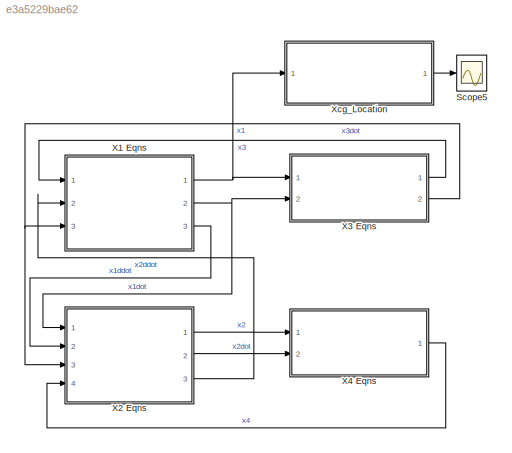
MODEL slx_e3a5229bae62
KIND model
CONFIG AbsTol = auto
CONFIG EnableMultiTasking = off
CONFIG FixedStep = 0.01
CONFIG InitFcn = M=900;\nm=40;\nI=1506.645875;\nk1=14.64*3500;\nk2=14.64*3500;\nk3=91.5*3000;\nk4=91.5*3000;\nc1=64.05*40;\nc2=64.05*40;\nc3=2748.66*3;\nc4=2748.66*3;\na=2.635;\nb=1.3;
CONFIG MaxStep = auto
CONFIG MinStep = auto
CONFIG RelTol = 1e-3
CONFIG SampleTimeConstraint = Unconstrained
CONFIG SolverName = ode4
CONFIG StartTime = 0.0
CONFIG StopTime = 10.0
BLOCK [Scope] Scope5
  Floating = off
  NumInputPorts = 1
  Ports = [1]
  ScopeSpecificationString = Simulink.scopes.TimeScopeBlockCfg('CurrentConfiguration', extmgr.ConfigurationSet(extmgr.Configuration('Core','General UI',true),extmgr.Configuration('Core','Source UI',true),extmgr.Configuration('Sources','WiredSimulink',true,'DataLoggingVariableName','ScopeData1'),extmgr.Configuration('Visuals','Time Domain',true,'SerializedDisplays',{struct('MinYLimReal','-0.32965','MaxYLimReal','0.38647','YLab...<+1439ch>
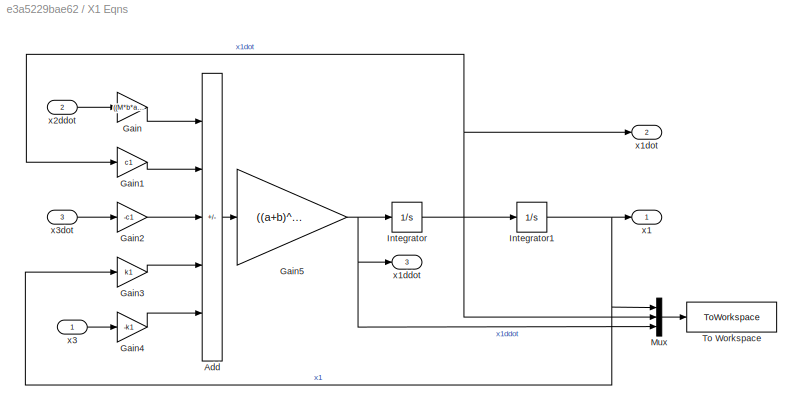
BLOCK [SubSystem] X1 Eqns
  Ports = [3, 3]
  RequestExecContextInheritance = off
BLOCK [Sum] X1 Eqns/Add
  IconShape = rectangular
  Inputs = -----
  Ports = [5, 1]
BLOCK [Gain] X1 Eqns/Gain
  Gain = ((M*b*a)-I)/((a+b)^2)
BLOCK [Gain] X1 Eqns/Gain1
  Gain = c1
BLOCK [Gain] X1 Eqns/Gain2
  Gain = -c1
BLOCK [Gain] X1 Eqns/Gain3
  Gain = k1
BLOCK [Gain] X1 Eqns/Gain4
  Gain = -k1
BLOCK [Gain] X1 Eqns/Gain5
  Gain = ((a+b)^2)/((M*b^2)+I)
BLOCK [Integrator] X1 Eqns/Integrator
  Ports = [1, 1]
BLOCK [Integrator] X1 Eqns/Integrator1
  InitialCondition = 0.2
  Ports = [1, 1]
BLOCK [Mux] X1 Eqns/Mux
  DisplayOption = bar
  Inputs = 3
  Ports = [3, 1]
BLOCK [ToWorkspace] X1 Eqns/To Workspace
  FixptAsFi = on
  MaxDataPoints = inf
  Ports = [1]
  SampleTime = -1
  SaveFormat = Timeseries
  VariableName = X1
BLOCK [Outport] X1 Eqns/x1
BLOCK [Outport] X1 Eqns/x1ddot
  Port = 3
BLOCK [Outport] X1 Eqns/x1dot
  Port = 2
BLOCK [Inport] X1 Eqns/x2ddot
  Port = 2
BLOCK [Inport] X1 Eqns/x3
BLOCK [Inport] X1 Eqns/x3dot
  Port = 3
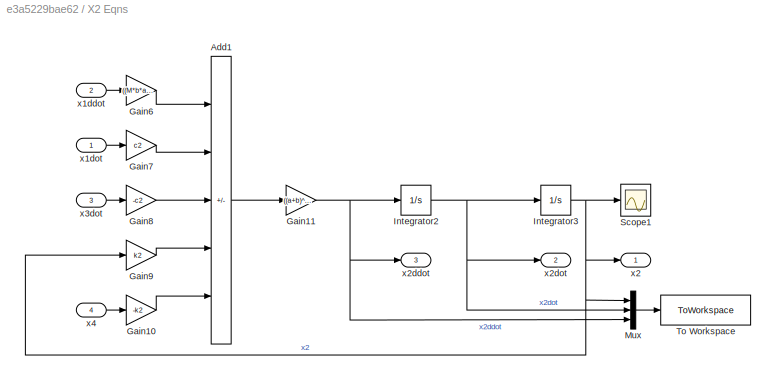
BLOCK [SubSystem] X2 Eqns
  Ports = [4, 3]
  RequestExecContextInheritance = off
BLOCK [Sum] X2 Eqns/Add1
  IconShape = rectangular
  Inputs = -----
  Ports = [5, 1]
BLOCK [Gain] X2 Eqns/Gain10
  Gain = -k2
BLOCK [Gain] X2 Eqns/Gain11
  Gain = ((a+b)^2)/((M*a^2)+I)
BLOCK [Gain] X2 Eqns/Gain6
  Gain = ((M*b*a)-I)/((a+b)^2)
BLOCK [Gain] X2 Eqns/Gain7
  Gain = c2
BLOCK [Gain] X2 Eqns/Gain8
  Gain = -c2
BLOCK [Gain] X2 Eqns/Gain9
  Gain = k2
BLOCK [Integrator] X2 Eqns/Integrator2
  Ports = [1, 1]
BLOCK [Integrator] X2 Eqns/Integrator3
  InitialCondition = -0.15
  Ports = [1, 1]
BLOCK [Mux] X2 Eqns/Mux
  DisplayOption = bar
  Inputs = 3
  Ports = [3, 1]
BLOCK [Scope] X2 Eqns/Scope1
  Floating = off
  NumInputPorts = 1
  Ports = [1]
  ScopeSpecificationString = Simulink.scopes.TimeScopeBlockCfg('CurrentConfiguration', extmgr.ConfigurationSet(extmgr.Configuration('Core','General UI',true),extmgr.Configuration('Core','Source UI',true),extmgr.Configuration('Sources','WiredSimulink',true,'DataLoggingVariableName','ScopeData1'),extmgr.Configuration('Visuals','Time Domain',true,'SerializedDisplays',{struct('MinYLimReal','-0.24411','MaxYLimReal','0.29508','YLab...<+1395ch>
BLOCK [ToWorkspace] X2 Eqns/To Workspace
  FixptAsFi = on
  MaxDataPoints = inf
  Ports = [1]
  SampleTime = -1
  SaveFormat = Timeseries
  VariableName = X2
BLOCK [Inport] X2 Eqns/x1ddot
  Port = 2
BLOCK [Inport] X2 Eqns/x1dot
BLOCK [Outport] X2 Eqns/x2
BLOCK [Outport] X2 Eqns/x2ddot
  Port = 3
BLOCK [Outport] X2 Eqns/x2dot
  Port = 2
BLOCK [Inport] X2 Eqns/x3dot
  Port = 3
BLOCK [Inport] X2 Eqns/x4
  Port = 4
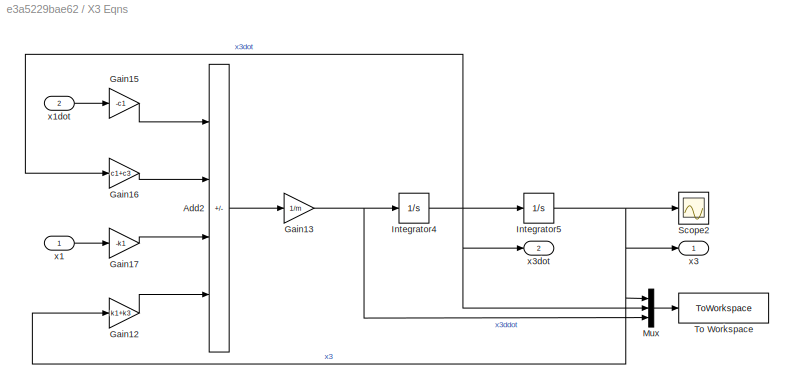
BLOCK [SubSystem] X3 Eqns
  Ports = [2, 2]
  RequestExecContextInheritance = off
BLOCK [Sum] X3 Eqns/Add2
  IconShape = rectangular
  Inputs = ----
  Ports = [4, 1]
BLOCK [Gain] X3 Eqns/Gain12
  Gain = k1+k3
BLOCK [Gain] X3 Eqns/Gain13
  Gain = 1/m
BLOCK [Gain] X3 Eqns/Gain15
  Gain = -c1
BLOCK [Gain] X3 Eqns/Gain16
  Gain = c1+c3
BLOCK [Gain] X3 Eqns/Gain17
  Gain = -k1
BLOCK [Integrator] X3 Eqns/Integrator4
  Ports = [1, 1]
BLOCK [Integrator] X3 Eqns/Integrator5
  Ports = [1, 1]
BLOCK [Mux] X3 Eqns/Mux
  DisplayOption = bar
  Inputs = 3
  Ports = [3, 1]
BLOCK [Scope] X3 Eqns/Scope2
  Floating = off
  NumInputPorts = 1
  Ports = [1]
  ScopeSpecificationString = Simulink.scopes.TimeScopeBlockCfg('CurrentConfiguration', extmgr.ConfigurationSet(extmgr.Configuration('Core','General UI',true),extmgr.Configuration('Core','Source UI',true),extmgr.Configuration('Sources','WiredSimulink',true,'DataLoggingVariableName','ScopeData2'),extmgr.Configuration('Visuals','Time Domain',true,'SerializedDisplays',{struct('MinYLimReal','-0.01977','MaxYLimReal','0.01967','YLab...<+1370ch>
BLOCK [ToWorkspace] X3 Eqns/To Workspace
  FixptAsFi = on
  MaxDataPoints = inf
  Ports = [1]
  SampleTime = -1
  SaveFormat = Timeseries
  VariableName = X3
BLOCK [Inport] X3 Eqns/x1
BLOCK [Inport] X3 Eqns/x1dot
  Port = 2
BLOCK [Outport] X3 Eqns/x3
BLOCK [Outport] X3 Eqns/x3dot
  Port = 2
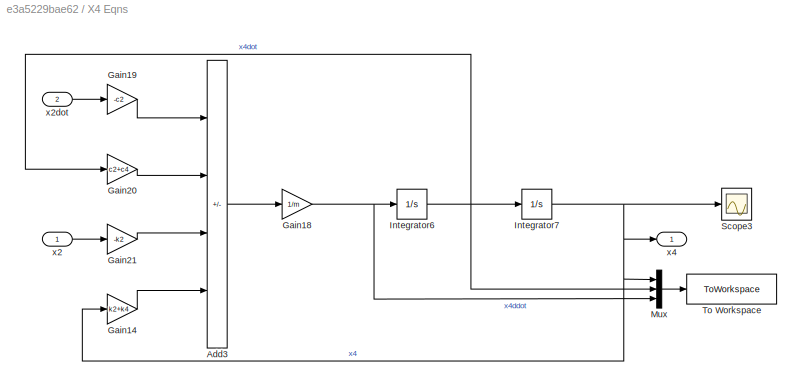
BLOCK [SubSystem] X4 Eqns
  Ports = [2, 1]
  RequestExecContextInheritance = off
BLOCK [Sum] X4 Eqns/Add3
  IconShape = rectangular
  Inputs = ----
  Ports = [4, 1]
BLOCK [Gain] X4 Eqns/Gain14
  Gain = k2+k4
BLOCK [Gain] X4 Eqns/Gain18
  Gain = 1/m
BLOCK [Gain] X4 Eqns/Gain19
  Gain = -c2
BLOCK [Gain] X4 Eqns/Gain20
  Gain = c2+c4
BLOCK [Gain] X4 Eqns/Gain21
  Gain = -k2
BLOCK [Integrator] X4 Eqns/Integrator6
  Ports = [1, 1]
BLOCK [Integrator] X4 Eqns/Integrator7
  Ports = [1, 1]
BLOCK [Mux] X4 Eqns/Mux
  DisplayOption = bar
  Inputs = 3
  Ports = [3, 1]
BLOCK [Scope] X4 Eqns/Scope3
  Floating = off
  NumInputPorts = 1
  Ports = [1]
  ScopeSpecificationString = Simulink.scopes.TimeScopeBlockCfg('CurrentConfiguration', extmgr.ConfigurationSet(extmgr.Configuration('Core','General UI',true),extmgr.Configuration('Core','Source UI',true),extmgr.Configuration('Sources','WiredSimulink',true,'DataLoggingVariableName','ScopeData3'),extmgr.Configuration('Visuals','Time Domain',true,'SerializedDisplays',{struct('MinYLimReal','-0.04723','MaxYLimReal','0.05664','YLab...<+1370ch>
BLOCK [ToWorkspace] X4 Eqns/To Workspace
  FixptAsFi = on
  MaxDataPoints = inf
  Ports = [1]
  SampleTime = -1
  SaveFormat = Timeseries
  VariableName = X4
BLOCK [Inport] X4 Eqns/x2
BLOCK [Inport] X4 Eqns/x2dot
  Port = 2
BLOCK [Outport] X4 Eqns/x4
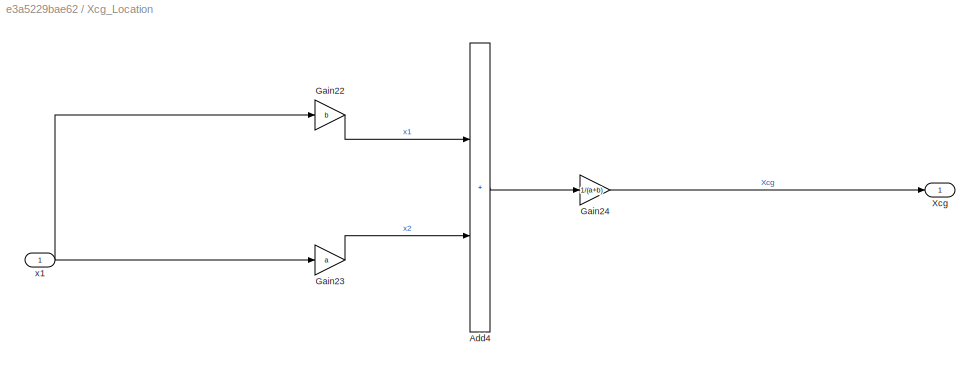
BLOCK [SubSystem] Xcg_Location
  Ports = [1, 1]
  RequestExecContextInheritance = off
BLOCK [Sum] Xcg_Location/Add4
  IconShape = rectangular
  Ports = [2, 1]
BLOCK [Gain] Xcg_Location/Gain22
  Gain = b
BLOCK [Gain] Xcg_Location/Gain23
  Gain = a
BLOCK [Gain] Xcg_Location/Gain24
  Gain = 1/(a+b)
BLOCK [Outport] Xcg_Location/Xcg
BLOCK [Inport] Xcg_Location/x1
LINE X1 Eqns/Add:1 -> X1 Eqns/Gain5:1
LINE X1 Eqns/Gain1:1 -> X1 Eqns/Add:2
LINE X1 Eqns/Gain2:1 -> X1 Eqns/Add:3
LINE X1 Eqns/Gain3:1 -> X1 Eqns/Add:4
LINE X1 Eqns/Gain4:1 -> X1 Eqns/Add:5
NET X1 Eqns/Gain5:1 -> X1 Eqns/Integrator:1, X1 Eqns/Mux:3, X1 Eqns/x1ddot:1
LINE X1 Eqns/Gain:1 -> X1 Eqns/Add:1
NET X1 Eqns/Integrator1:1 -> X1 Eqns/Gain3:1, X1 Eqns/Mux:1, X1 Eqns/x1:1
NET X1 Eqns/Integrator:1 -> X1 Eqns/Gain1:1, X1 Eqns/Integrator1:1, X1 Eqns/Mux:2, X1 Eqns/x1dot:1
LINE X1 Eqns/Mux:1 -> X1 Eqns/To Workspace:1
LINE X1 Eqns/x2ddot:1 -> X1 Eqns/Gain:1
LINE X1 Eqns/x3:1 -> X1 Eqns/Gain4:1
LINE X1 Eqns/x3dot:1 -> X1 Eqns/Gain2:1
NET X1 Eqns:1 -> X3 Eqns:1, Xcg_Location:1
NET X1 Eqns:2 -> X2 Eqns:1, X3 Eqns:2
LINE X1 Eqns:3 -> X2 Eqns:2
LINE X2 Eqns/Add1:1 -> X2 Eqns/Gain11:1
LINE X2 Eqns/Gain10:1 -> X2 Eqns/Add1:5
NET X2 Eqns/Gain11:1 -> X2 Eqns/Integrator2:1, X2 Eqns/Mux:3, X2 Eqns/x2ddot:1
LINE X2 Eqns/Gain6:1 -> X2 Eqns/Add1:1
LINE X2 Eqns/Gain7:1 -> X2 Eqns/Add1:2
LINE X2 Eqns/Gain8:1 -> X2 Eqns/Add1:3
LINE X2 Eqns/Gain9:1 -> X2 Eqns/Add1:4
NET X2 Eqns/Integrator2:1 -> X2 Eqns/Integrator3:1, X2 Eqns/Mux:2, X2 Eqns/x2dot:1
NET X2 Eqns/Integrator3:1 -> X2 Eqns/Gain9:1, X2 Eqns/Mux:1, X2 Eqns/Scope1:1, X2 Eqns/x2:1
LINE X2 Eqns/Mux:1 -> X2 Eqns/To Workspace:1
LINE X2 Eqns/x1ddot:1 -> X2 Eqns/Gain6:1
LINE X2 Eqns/x1dot:1 -> X2 Eqns/Gain7:1
LINE X2 Eqns/x3dot:1 -> X2 Eqns/Gain8:1
LINE X2 Eqns/x4:1 -> X2 Eqns/Gain10:1
LINE X2 Eqns:1 -> X4 Eqns:1
LINE X2 Eqns:2 -> X4 Eqns:2
LINE X2 Eqns:3 -> X1 Eqns:2
LINE X3 Eqns/Add2:1 -> X3 Eqns/Gain13:1
LINE X3 Eqns/Gain12:1 -> X3 Eqns/Add2:4
NET X3 Eqns/Gain13:1 -> X3 Eqns/Integrator4:1, X3 Eqns/Mux:3
LINE X3 Eqns/Gain15:1 -> X3 Eqns/Add2:1
LINE X3 Eqns/Gain16:1 -> X3 Eqns/Add2:2
LINE X3 Eqns/Gain17:1 -> X3 Eqns/Add2:3
NET X3 Eqns/Integrator4:1 -> X3 Eqns/Gain16:1, X3 Eqns/Integrator5:1, X3 Eqns/Mux:2, X3 Eqns/x3dot:1
NET X3 Eqns/Integrator5:1 -> X3 Eqns/Gain12:1, X3 Eqns/Mux:1, X3 Eqns/Scope2:1, X3 Eqns/x3:1
LINE X3 Eqns/Mux:1 -> X3 Eqns/To Workspace:1
LINE X3 Eqns/x1:1 -> X3 Eqns/Gain17:1
LINE X3 Eqns/x1dot:1 -> X3 Eqns/Gain15:1
LINE X3 Eqns:1 -> X1 Eqns:1
NET X3 Eqns:2 -> X1 Eqns:3, X2 Eqns:3
LINE X4 Eqns/Add3:1 -> X4 Eqns/Gain18:1
LINE X4 Eqns/Gain14:1 -> X4 Eqns/Add3:4
NET X4 Eqns/Gain18:1 -> X4 Eqns/Integrator6:1, X4 Eqns/Mux:3
LINE X4 Eqns/Gain19:1 -> X4 Eqns/Add3:1
LINE X4 Eqns/Gain20:1 -> X4 Eqns/Add3:2
LINE X4 Eqns/Gain21:1 -> X4 Eqns/Add3:3
NET X4 Eqns/Integrator6:1 -> X4 Eqns/Gain20:1, X4 Eqns/Integrator7:1, X4 Eqns/Mux:2
NET X4 Eqns/Integrator7:1 -> X4 Eqns/Gain14:1, X4 Eqns/Mux:1, X4 Eqns/Scope3:1, X4 Eqns/x4:1
LINE X4 Eqns/Mux:1 -> X4 Eqns/To Workspace:1
LINE X4 Eqns/x2:1 -> X4 Eqns/Gain21:1
LINE X4 Eqns/x2dot:1 -> X4 Eqns/Gain19:1
LINE X4 Eqns:1 -> X2 Eqns:4
LINE Xcg_Location/Add4:1 -> Xcg_Location/Gain24:1
LINE Xcg_Location/Gain22:1 -> Xcg_Location/Add4:1
LINE Xcg_Location/Gain23:1 -> Xcg_Location/Add4:2
LINE Xcg_Location/Gain24:1 -> Xcg_Location/Xcg:1
NET Xcg_Location/x1:1 -> Xcg_Location/Gain22:1, Xcg_Location/Gain23:1
LINE Xcg_Location:1 -> Scope5:1
note: NET lines group one-source signal fan-out (src -> all destinations, sorted); 1:1 wires keep LINE
